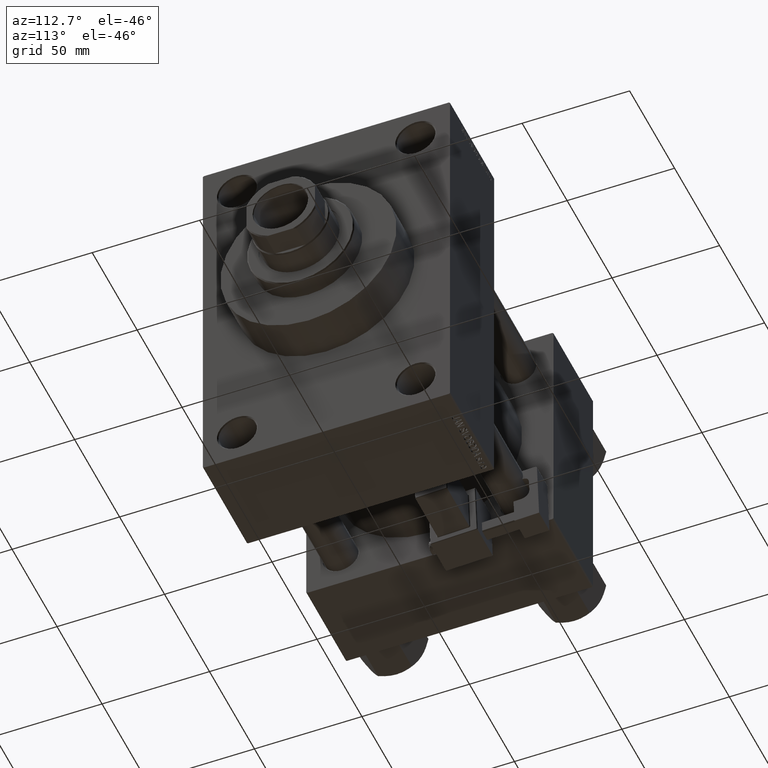
[diagram: clean part render]
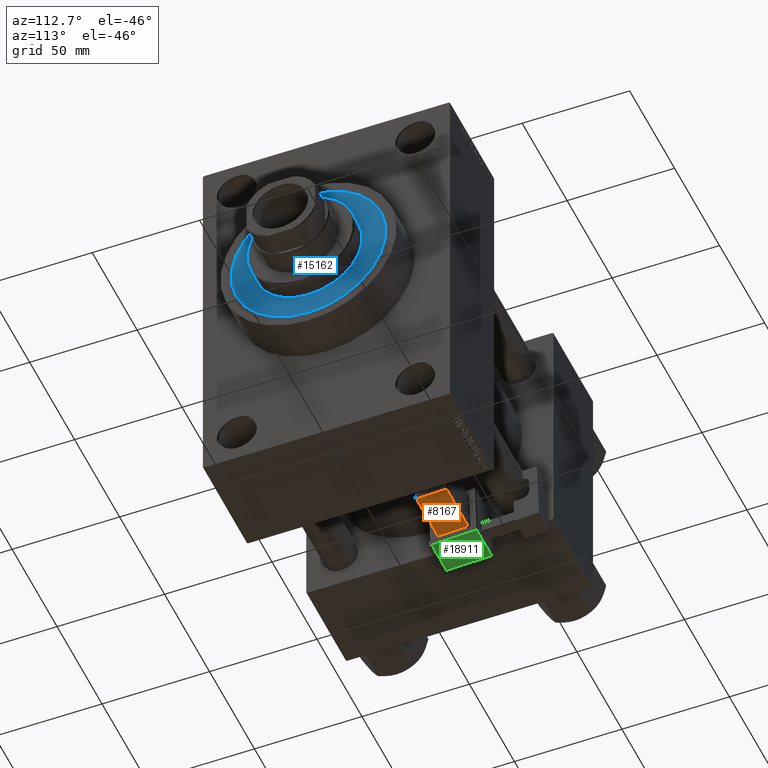
[diagram: same view with three faces highlighted in distinct colors, each labeled with its STEP entity id]
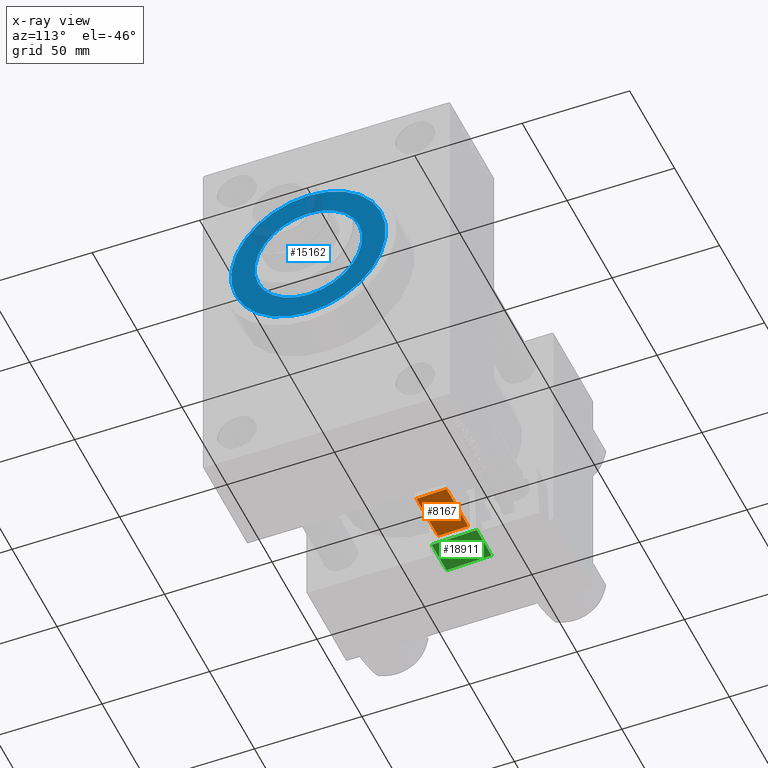
[diagram: x-ray of the same camera — body ghosted, the three highlighted faces saturated]
A machine part, auxiliary view with three faces highlighted in distinct colors.
The next image is the same camera in x-ray (body ghosted, the three faces saturated) — at least one of them is partly hidden behind the body in this view.
Their STEP definitions:

[orange] entity #8167 — the highlighted planar face has unit normal (-0, -0.0353, 0.9994).
#1144 = EDGE_LOOP ( 'NONE', ( #16755, #27805, #13071, #46608 ) ) ;
#1907 = FACE_OUTER_BOUND ( 'NONE', #1144, .T. ) ;
#3208 = CARTESIAN_POINT ( 'NONE',  ( 9.250000000000005329, -39.75000000000000000, 1.999999999999998224 ) ) ;
#8028 = VECTOR ( 'NONE', #48507, 1000.000000000000000 ) ;
#8167 = ADVANCED_FACE ( 'NONE', ( #1907 ), #44242, .F. ) ;
#9319 = VERTEX_POINT ( 'NONE', #9922 ) ;
#9922 = CARTESIAN_POINT ( 'NONE',  ( 33.25000000000000000, -39.75000000000000000, 2.000000000000001332 ) ) ;
#10038 = DIRECTION ( 'NONE',  ( -1.000000000000000000, 0.000000000000000000, -1.334402673828313339E-16 ) ) ;
#12812 = VERTEX_POINT ( 'NONE', #3208 ) ;
#13071 = ORIENTED_EDGE ( 'NONE', *, *, #31689, .T. ) ;
#16028 = CARTESIAN_POINT ( 'NONE',  ( 9.250000000000005329, -25.75000000000000355, 1.999999999999999556 ) ) ;
#16755 = ORIENTED_EDGE ( 'NONE', *, *, #43991, .T. ) ;
#17781 = LINE ( 'NONE', #33169, #8028 ) ;
#18109 = LINE ( 'NONE', #29219, #44743 ) ;
#20779 = EDGE_CURVE ( 'NONE', #41909, #41235, #26820, .T. ) ;
#21335 = CARTESIAN_POINT ( 'NONE',  ( 33.75000000000000000, -25.25000000000000000, 2.000000000000003109 ) ) ;
#22527 = CARTESIAN_POINT ( 'NONE',  ( 33.75000000000000000, -25.75000000000000355, 2.000000000000003109 ) ) ;
#23023 = DIRECTION ( 'NONE',  ( 1.000000000000000000, -0.000000000000000000, 1.334402673828313339E-16 ) ) ;
#23724 = CARTESIAN_POINT ( 'NONE',  ( 33.25000000000000000, -25.75000000000000355, 2.000000000000003109 ) ) ;
#26820 = LINE ( 'NONE', #22527, #48254 ) ;
#27161 = LINE ( 'NONE', #27885, #47796 ) ;
#27805 = ORIENTED_EDGE ( 'NONE', *, *, #48664, .T. ) ;
#27885 = CARTESIAN_POINT ( 'NONE',  ( 33.25000000000000000, -40.25000000000000000, 2.000000000000001332 ) ) ;
#29219 = CARTESIAN_POINT ( 'NONE',  ( 33.75000000000000000, -39.75000000000000000, 2.000000000000001332 ) ) ;
#31689 = EDGE_CURVE ( 'NONE', #12812, #41909, #17781, .T. ) ;
#33169 = CARTESIAN_POINT ( 'NONE',  ( 9.250000000000005329, -25.25000000000000000, 2.000000000000000000 ) ) ;
#36200 = DIRECTION ( 'NONE',  ( 1.000000000000000000, 0.000000000000000000, 1.334402673828313339E-16 ) ) ;
#36699 = AXIS2_PLACEMENT_3D ( 'NONE', #21335, #48273, #36200 ) ;
#41235 = VERTEX_POINT ( 'NONE', #23724 ) ;
#41909 = VERTEX_POINT ( 'NONE', #16028 ) ;
#43991 = EDGE_CURVE ( 'NONE', #41235, #9319, #27161, .T. ) ;
#44242 = PLANE ( 'NONE',  #36699 ) ;
#44743 = VECTOR ( 'NONE', #10038, 1000.000000000000000 ) ;
#46523 = DIRECTION ( 'NONE',  ( 5.473822126268816683E-48, -1.000000000000000000, -1.156482317317871725E-16 ) ) ;
#46608 = ORIENTED_EDGE ( 'NONE', *, *, #20779, .T. ) ;
#47796 = VECTOR ( 'NONE', #46523, 1000.000000000000000 ) ;
#48254 = VECTOR ( 'NONE', #23023, 1000.000000000000000 ) ;
#48273 = DIRECTION ( 'NONE',  ( -1.334402673828313339E-16, -1.156482317317871725E-16, 1.000000000000000000 ) ) ;
#48507 = DIRECTION ( 'NONE',  ( -1.543213096464132036E-32, 1.000000000000000000, 1.156482317317871725E-16 ) ) ;
#48664 = EDGE_CURVE ( 'NONE', #9319, #12812, #18109, .T. ) ;

[blue] entity #15162 — the highlighted planar face has unit normal (1, -0, -0).
#502 = CARTESIAN_POINT ( 'NONE',  ( 0.000000000000000000, 0.000000000000000000, 43.25999999999999801 ) ) ;
#1278 = FACE_BOUND ( 'NONE', #46177, .T. ) ;
#1971 = ORIENTED_EDGE ( 'NONE', *, *, #24054, .F. ) ;
#3234 = VERTEX_POINT ( 'NONE', #21991 ) ;
#4292 = CARTESIAN_POINT ( 'NONE',  ( 36.00000000000000000, 4.408728476930470856E-15, 43.25999999999999801 ) ) ;
#6004 = CARTESIAN_POINT ( 'NONE',  ( -36.00000000000000000, 0.000000000000000000, 43.25999999999999801 ) ) ;
#6612 = DIRECTION ( 'NONE',  ( 1.000000000000000000, 0.000000000000000000, 0.000000000000000000 ) ) ;
#9352 = FACE_OUTER_BOUND ( 'NONE', #15423, .T. ) ;
#10554 = CIRCLE ( 'NONE', #14578, 25.00000000000000000 ) ;
#11736 = DIRECTION ( 'NONE',  ( 0.000000000000000000, 0.000000000000000000, 1.000000000000000000 ) ) ;
#11853 = DIRECTION ( 'NONE',  ( 1.000000000000000000, 0.000000000000000000, 0.000000000000000000 ) ) ;
#12151 = CIRCLE ( 'NONE', #25065, 36.00000000000000000 ) ;
#12615 = CARTESIAN_POINT ( 'NONE',  ( 0.000000000000000000, 0.000000000000000000, 43.25999999999999801 ) ) ;
#14578 = AXIS2_PLACEMENT_3D ( 'NONE', #29082, #41632, #45168 ) ;
#15162 = ADVANCED_FACE ( 'NONE', ( #1278, #9352 ), #47146, .T. ) ;
#15423 = EDGE_LOOP ( 'NONE', ( #47104, #27934 ) ) ;
#18021 = VERTEX_POINT ( 'NONE', #6004 ) ;
#20301 = AXIS2_PLACEMENT_3D ( 'NONE', #34948, #11736, #42490 ) ;
#21991 = CARTESIAN_POINT ( 'NONE',  ( -25.00000000000000000, 0.000000000000000000, 43.25999999999999801 ) ) ;
#22246 = DIRECTION ( 'NONE',  ( 0.000000000000000000, 0.000000000000000000, 1.000000000000000000 ) ) ;
#23339 = VERTEX_POINT ( 'NONE', #4292 ) ;
#23379 = EDGE_CURVE ( 'NONE', #31394, #3234, #33890, .T. ) ;
#24054 = EDGE_CURVE ( 'NONE', #3234, #31394, #10554, .T. ) ;
#24742 = DIRECTION ( 'NONE',  ( 0.000000000000000000, 0.000000000000000000, 1.000000000000000000 ) ) ;
#25065 = AXIS2_PLACEMENT_3D ( 'NONE', #41130, #22246, #6612 ) ;
#25924 = CIRCLE ( 'NONE', #20301, 36.00000000000000000 ) ;
#26903 = CARTESIAN_POINT ( 'NONE',  ( 25.00000000000000000, 3.061616997868383043E-15, 43.25999999999999801 ) ) ;
#27748 = DIRECTION ( 'NONE',  ( 0.000000000000000000, 0.000000000000000000, 1.000000000000000000 ) ) ;
#27934 = ORIENTED_EDGE ( 'NONE', *, *, #36859, .T. ) ;
#28270 = DIRECTION ( 'NONE',  ( 1.000000000000000000, 0.000000000000000000, -0.000000000000000000 ) ) ;
#29082 = CARTESIAN_POINT ( 'NONE',  ( 0.000000000000000000, 0.000000000000000000, 43.25999999999999801 ) ) ;
#29869 = AXIS2_PLACEMENT_3D ( 'NONE', #502, #27748, #11853 ) ;
#31394 = VERTEX_POINT ( 'NONE', #26903 ) ;
#31708 = ORIENTED_EDGE ( 'NONE', *, *, #23379, .F. ) ;
#33890 = CIRCLE ( 'NONE', #29869, 25.00000000000000000 ) ;
#34482 = EDGE_CURVE ( 'NONE', #18021, #23339, #12151, .T. ) ;
#34948 = CARTESIAN_POINT ( 'NONE',  ( 0.000000000000000000, 0.000000000000000000, 43.25999999999999801 ) ) ;
#35323 = AXIS2_PLACEMENT_3D ( 'NONE', #12615, #24742, #28270 ) ;
#36859 = EDGE_CURVE ( 'NONE', #23339, #18021, #25924, .T. ) ;
#41130 = CARTESIAN_POINT ( 'NONE',  ( 0.000000000000000000, 0.000000000000000000, 43.25999999999999801 ) ) ;
#41632 = DIRECTION ( 'NONE',  ( 0.000000000000000000, 0.000000000000000000, 1.000000000000000000 ) ) ;
#42490 = DIRECTION ( 'NONE',  ( 1.000000000000000000, 0.000000000000000000, 0.000000000000000000 ) ) ;
#45168 = DIRECTION ( 'NONE',  ( 1.000000000000000000, 0.000000000000000000, 0.000000000000000000 ) ) ;
#46177 = EDGE_LOOP ( 'NONE', ( #1971, #31708 ) ) ;
#47104 = ORIENTED_EDGE ( 'NONE', *, *, #34482, .T. ) ;
#47146 = PLANE ( 'NONE',  #35323 ) ;

[green] entity #18911 — the highlighted planar face has unit normal (0, -0.0353, 0.9994).
#563 = ORIENTED_EDGE ( 'NONE', *, *, #43825, .T. ) ;
#3963 = FACE_OUTER_BOUND ( 'NONE', #33149, .T. ) ;
#5018 = VECTOR ( 'NONE', #24407, 1000.000000000000000 ) ;
#8282 = LINE ( 'NONE', #16832, #5018 ) ;
#9015 = CARTESIAN_POINT ( 'NONE',  ( 8.250000000000003553, -22.25000000000000000, -1.000000000000000222 ) ) ;
#10436 = VERTEX_POINT ( 'NONE', #9015 ) ;
#11526 = DIRECTION ( 'NONE',  ( 0.000000000000000000, 0.000000000000000000, 1.000000000000000000 ) ) ;
#11573 = ORIENTED_EDGE ( 'NONE', *, *, #24036, .T. ) ;
#12164 = VECTOR ( 'NONE', #16459, 1000.000000000000000 ) ;
#12666 = EDGE_CURVE ( 'NONE', #20929, #34636, #34537, .T. ) ;
#13701 = CARTESIAN_POINT ( 'NONE',  ( -8.250000000000003553, -43.25000000000000000, -1.000000000000000222 ) ) ;
#15287 = LINE ( 'NONE', #38230, #18846 ) ;
#15364 = DIRECTION ( 'NONE',  ( -1.000000000000000000, -0.000000000000000000, 0.000000000000000000 ) ) ;
#16459 = DIRECTION ( 'NONE',  ( -0.000000000000000000, 1.000000000000000000, 0.000000000000000000 ) ) ;
#16832 = CARTESIAN_POINT ( 'NONE',  ( 8.250000000000003553, -43.75000000000000000, -1.000000000000000222 ) ) ;
#17527 = VECTOR ( 'NONE', #15364, 1000.000000000000000 ) ;
#18050 = CARTESIAN_POINT ( 'NONE',  ( 8.250000000000003553, -43.25000000000000000, -1.000000000000000222 ) ) ;
#18846 = VECTOR ( 'NONE', #41746, 1000.000000000000000 ) ;
#18911 = ADVANCED_FACE ( 'NONE', ( #3963 ), #34486, .F. ) ;
#20929 = VERTEX_POINT ( 'NONE', #18050 ) ;
#22840 = ORIENTED_EDGE ( 'NONE', *, *, #12666, .T. ) ;
#24036 = EDGE_CURVE ( 'NONE', #34636, #30130, #27830, .T. ) ;
#24407 = DIRECTION ( 'NONE',  ( -0.000000000000000000, -1.000000000000000000, -0.000000000000000000 ) ) ;
#26184 = CARTESIAN_POINT ( 'NONE',  ( 8.750000000000003553, -43.75000000000000000, -1.000000000000000222 ) ) ;
#27830 = LINE ( 'NONE', #40148, #12164 ) ;
#30130 = VERTEX_POINT ( 'NONE', #36047 ) ;
#33149 = EDGE_LOOP ( 'NONE', ( #563, #42848, #22840, #11573 ) ) ;
#33991 = DIRECTION ( 'NONE',  ( 1.000000000000000000, 0.000000000000000000, -0.000000000000000000 ) ) ;
#34486 = PLANE ( 'NONE',  #48296 ) ;
#34537 = LINE ( 'NONE', #49870, #17527 ) ;
#34636 = VERTEX_POINT ( 'NONE', #13701 ) ;
#36047 = CARTESIAN_POINT ( 'NONE',  ( -8.250000000000003553, -22.25000000000000000, -1.000000000000000222 ) ) ;
#38230 = CARTESIAN_POINT ( 'NONE',  ( 8.750000000000003553, -22.25000000000000000, -1.000000000000000222 ) ) ;
#40148 = CARTESIAN_POINT ( 'NONE',  ( -8.250000000000003553, -43.75000000000000000, -1.000000000000000222 ) ) ;
#41627 = EDGE_CURVE ( 'NONE', #10436, #20929, #8282, .T. ) ;
#41746 = DIRECTION ( 'NONE',  ( 1.000000000000000000, -0.000000000000000000, 0.000000000000000000 ) ) ;
#42848 = ORIENTED_EDGE ( 'NONE', *, *, #41627, .T. ) ;
#43825 = EDGE_CURVE ( 'NONE', #30130, #10436, #15287, .T. ) ;
#48296 = AXIS2_PLACEMENT_3D ( 'NONE', #26184, #11526, #33991 ) ;
#49870 = CARTESIAN_POINT ( 'NONE',  ( 8.750000000000003553, -43.25000000000000000, -1.000000000000000222 ) ) ;